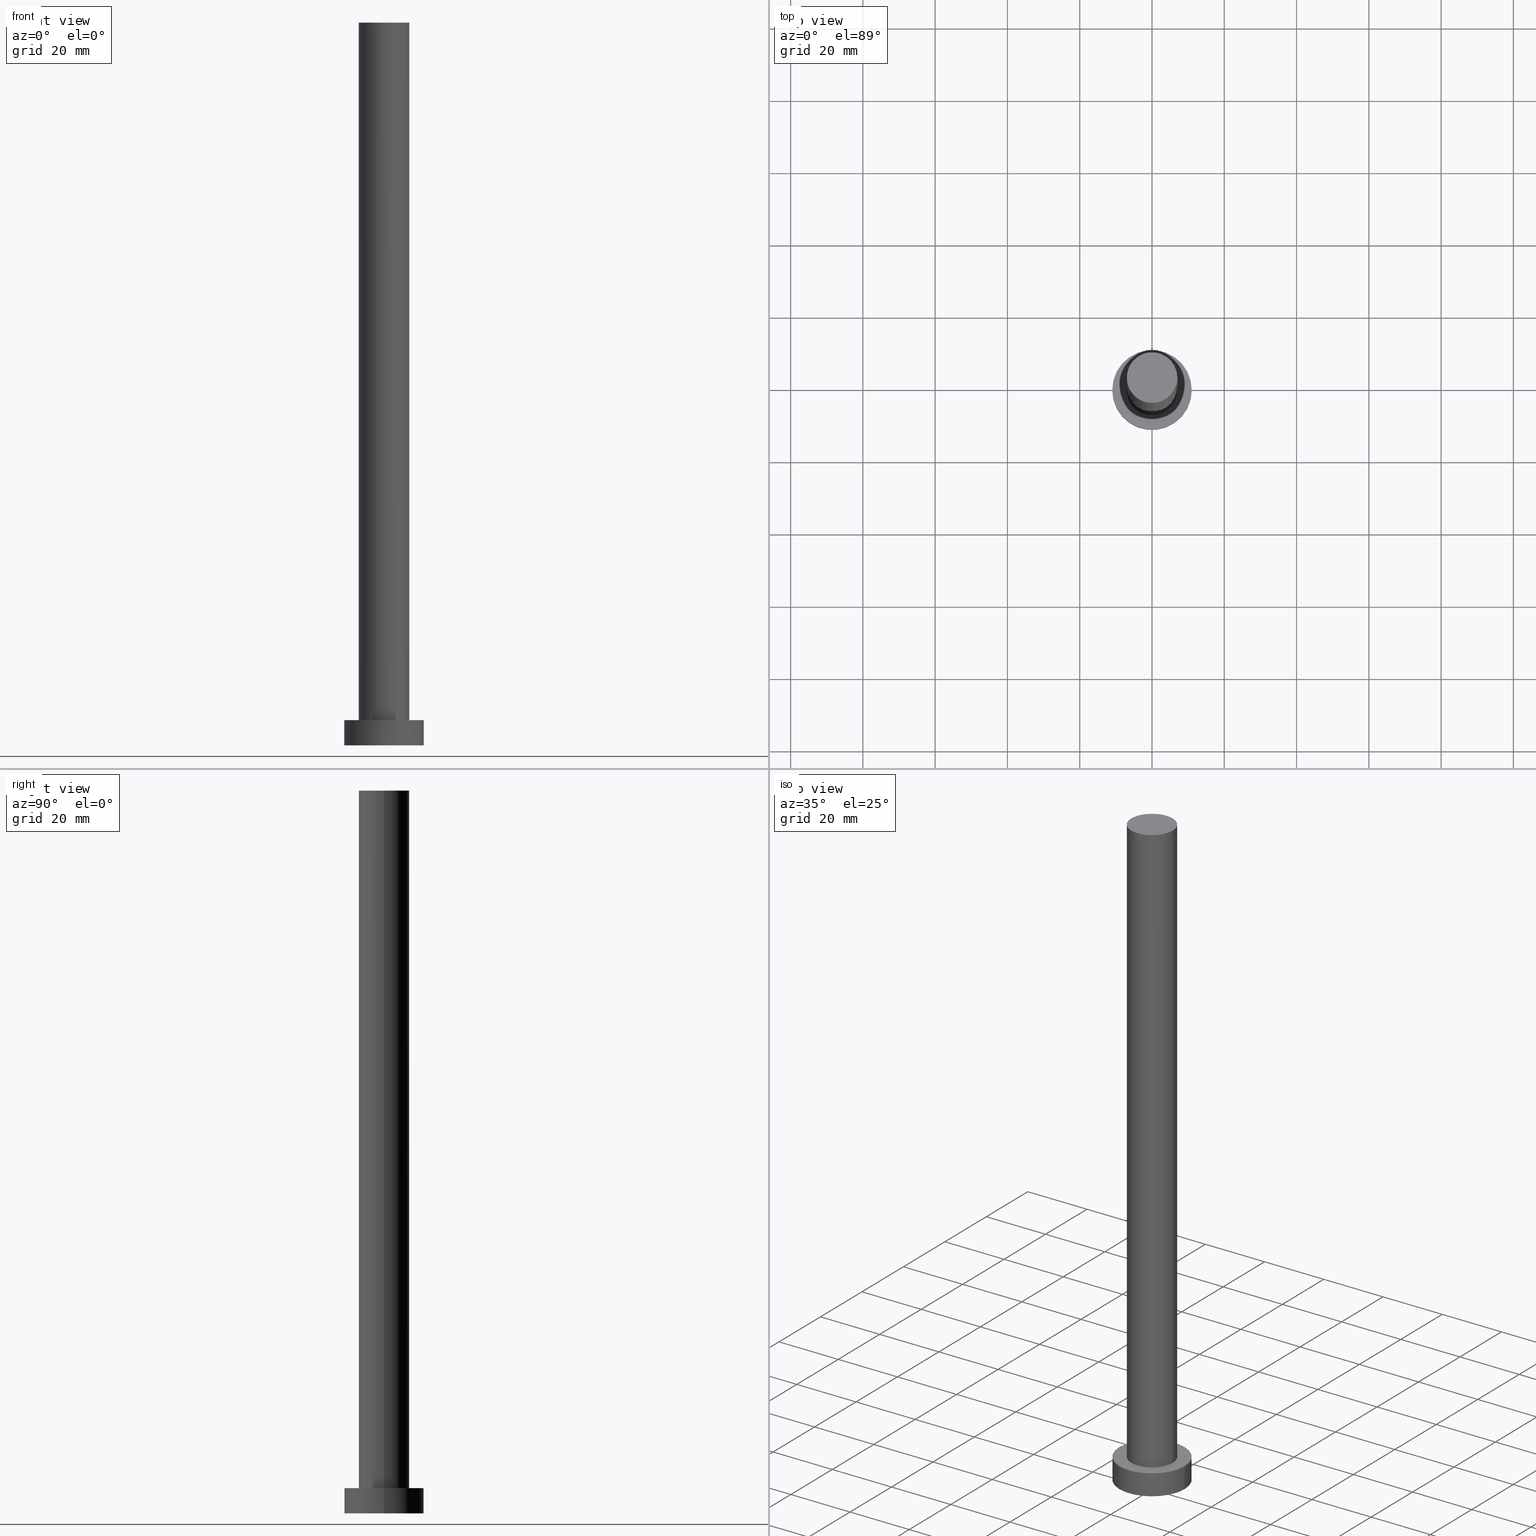
[diagram: canonical four-view strip — front | top / right | iso, engineering-drawing reading convention]
A machine part, canonical four-view strip (front | top / right | iso — engineering-drawing reading convention). The complete STEP part file that produces these views, byte-faithful:
ISO-10303-21;
HEADER;
FILE_DESCRIPTION (( 'STEP AP203' ),
    '1' );
FILE_NAME ('8347.STEP',
    '2023-02-13T09:23:05',
    ( '' ),
    ( '' ),
    'SwSTEP 2.0',
    'SolidWorks 2019',
    '' );
FILE_SCHEMA (( 'CONFIG_CONTROL_DESIGN' ));
ENDSEC;

DATA;
#1 = EDGE_CURVE ( 'NONE', #42, #231, #20, .T. ) ;
#2 = CIRCLE ( 'NONE', #103, 7.000000000000000888 ) ;
#3 = PERSON_AND_ORGANIZATION_ROLE ( 'classification_officer' ) ;
#4 = CC_DESIGN_DATE_AND_TIME_ASSIGNMENT ( #223, #40, ( #220 ) ) ;
#5 = CARTESIAN_POINT ( 'NONE',  ( 0.000000000000000000, 0.000000000000000000, 7.000000000000000000 ) ) ;
#6 = PERSON_AND_ORGANIZATION_ROLE ( 'creator' ) ;
#7 = AXIS2_PLACEMENT_3D ( 'NONE', #176, #253, #115 ) ;
#8 = EDGE_LOOP ( 'NONE', ( #33, #107 ) ) ;
#9 = AXIS2_PLACEMENT_3D ( 'NONE', #47, #184, #34 ) ;
#10 = SHAPE_DEFINITION_REPRESENTATION ( #245, #147 ) ;
#11 = CARTESIAN_POINT ( 'NONE',  ( -11.00000000000000000, 0.000000000000000000, 7.000000000000000000 ) ) ;
#12 = ORIENTED_EDGE ( 'NONE', *, *, #190, .F. ) ;
#13 = EDGE_CURVE ( 'NONE', #60, #231, #247, .T. ) ;
#14 = APPROVAL_ROLE ( '' ) ;
#15 = DIRECTION ( 'NONE',  ( 1.000000000000000000, 0.000000000000000000, -0.000000000000000000 ) ) ;
#16 = CARTESIAN_POINT ( 'NONE',  ( 11.00000000000000000, 1.347111479062088405E-15, 7.000000000000000000 ) ) ;
#17 = CLOSED_SHELL ( 'NONE', ( #122, #101, #49, #180, #92, #25, #171 ) ) ;
#18 = LINE ( 'NONE', #201, #56 ) ;
#19 = LOCAL_TIME ( 10, 23, 5.000000000000000000, #78 ) ;
#20 = LINE ( 'NONE', #21, #146 ) ;
#21 = CARTESIAN_POINT ( 'NONE',  ( -7.000000000000000888, 0.000000000000000000, 200.0000000000000000 ) ) ;
#22 = AXIS2_PLACEMENT_3D ( 'NONE', #67, #206, #166 ) ;
#23 = PRODUCT ( '8347', '8347', '', ( #87 ) ) ;
#24 = CYLINDRICAL_SURFACE ( 'NONE', #68, 7.000000000000000888 ) ;
#25 = ADVANCED_FACE ( 'NONE', ( #227 ), #203, .T. ) ;
#26 = ORIENTED_EDGE ( 'NONE', *, *, #190, .T. ) ;
#27 = AXIS2_PLACEMENT_3D ( 'NONE', #187, #135, #15 ) ;
#28 = CARTESIAN_POINT ( 'NONE',  ( -11.00000000000000000, 0.000000000000000000, 0.000000000000000000 ) ) ;
#29 = APPROVAL_PERSON_ORGANIZATION ( #35, #228, #254 ) ;
#30 = CARTESIAN_POINT ( 'NONE',  ( 0.000000000000000000, 0.000000000000000000, 200.0000000000000000 ) ) ;
#31 = APPROVAL_STATUS ( 'not_yet_approved' ) ;
#32 = ORIENTED_EDGE ( 'NONE', *, *, #13, .T. ) ;
#33 = ORIENTED_EDGE ( 'NONE', *, *, #72, .T. ) ;
#34 = DIRECTION ( 'NONE',  ( 1.000000000000000000, 0.000000000000000000, 0.000000000000000000 ) ) ;
#35 = PERSON_AND_ORGANIZATION ( #208, #205 ) ;
#36 = DIRECTION ( 'NONE',  ( 0.000000000000000000, 0.000000000000000000, 1.000000000000000000 ) ) ;
#37 = PERSON_AND_ORGANIZATION ( #208, #205 ) ;
#38 = FACE_BOUND ( 'NONE', #216, .T. ) ;
#39 = EDGE_LOOP ( 'NONE', ( #80, #252, #32, #116 ) ) ;
#40 = DATE_TIME_ROLE ( 'creation_date' ) ;
#41 = PERSON_AND_ORGANIZATION ( #208, #205 ) ;
#42 = VERTEX_POINT ( 'NONE', #44 ) ;
#43 =( NAMED_UNIT ( * ) SI_UNIT ( $, .STERADIAN. ) SOLID_ANGLE_UNIT ( ) );
#44 = CARTESIAN_POINT ( 'NONE',  ( -7.000000000000000888, 0.000000000000000000, 200.0000000000000000 ) ) ;
#45 = PERSON_AND_ORGANIZATION_ROLE ( 'design_supplier' ) ;
#46 = CC_DESIGN_PERSON_AND_ORGANIZATION_ASSIGNMENT ( #141, #222, ( #220 ) ) ;
#47 = CARTESIAN_POINT ( 'NONE',  ( 0.000000000000000000, 0.000000000000000000, 0.000000000000000000 ) ) ;
#48 = CC_DESIGN_PERSON_AND_ORGANIZATION_ASSIGNMENT ( #210, #117, ( #23 ) ) ;
#49 = ADVANCED_FACE ( 'NONE', ( #105 ), #243, .T. ) ;
#50 = DIRECTION ( 'NONE',  ( 0.000000000000000000, 0.000000000000000000, 1.000000000000000000 ) ) ;
#51 = EDGE_CURVE ( 'NONE', #133, #60, #18, .T. ) ;
#52 = AXIS2_PLACEMENT_3D ( 'NONE', #30, #36, #188 ) ;
#53 = ORIENTED_EDGE ( 'NONE', *, *, #108, .F. ) ;
#54 = APPLICATION_CONTEXT ( 'configuration controlled 3d designs of mechanical parts and assemblies' ) ;
#55 = DIRECTION ( 'NONE',  ( 1.000000000000000000, 0.000000000000000000, 0.000000000000000000 ) ) ;
#56 = VECTOR ( 'NONE', #110, 1000.000000000000000 ) ;
#57 = ORIENTED_EDGE ( 'NONE', *, *, #237, .T. ) ;
#58 = FACE_OUTER_BOUND ( 'NONE', #209, .T. ) ;
#59 = PRODUCT_RELATED_PRODUCT_CATEGORY ( 'detail', '', ( #23 ) ) ;
#60 = VERTEX_POINT ( 'NONE', #164 ) ;
#61 = CIRCLE ( 'NONE', #204, 7.000000000000000888 ) ;
#62 = ORIENTED_EDGE ( 'NONE', *, *, #51, .F. ) ;
#63 = CALENDAR_DATE ( 2023, 13, 2 ) ;
#64 = CARTESIAN_POINT ( 'NONE',  ( 0.000000000000000000, 0.000000000000000000, 7.000000000000000000 ) ) ;
#65 = AXIS2_PLACEMENT_3D ( 'NONE', #93, #137, #219 ) ;
#66 = VERTEX_POINT ( 'NONE', #16 ) ;
#67 = CARTESIAN_POINT ( 'NONE',  ( 0.000000000000000000, 0.000000000000000000, 200.0000000000000000 ) ) ;
#68 = AXIS2_PLACEMENT_3D ( 'NONE', #183, #84, #162 ) ;
#69 = SECURITY_CLASSIFICATION ( '', '', #127 ) ;
#70 = DIRECTION ( 'NONE',  ( 0.000000000000000000, 0.000000000000000000, 1.000000000000000000 ) ) ;
#71 = ORIENTED_EDGE ( 'NONE', *, *, #202, .F. ) ;
#72 = EDGE_CURVE ( 'NONE', #191, #66, #139, .T. ) ;
#73 = APPLICATION_PROTOCOL_DEFINITION ( 'international standard', 'config_control_design', 1994, #79 ) ;
#74 = DIRECTION ( 'NONE',  ( 0.000000000000000000, 0.000000000000000000, 1.000000000000000000 ) ) ;
#75 = CALENDAR_DATE ( 2023, 13, 2 ) ;
#76 = APPROVAL ( #113, 'NEUR�EN�' ) ;
#77 = CARTESIAN_POINT ( 'NONE',  ( -11.00000000000000000, 0.000000000000000000, 7.000000000000000000 ) ) ;
#78 = COORDINATED_UNIVERSAL_TIME_OFFSET ( 1, 0, .AHEAD. ) ;
#79 = APPLICATION_CONTEXT ( 'configuration controlled 3d designs of mechanical parts and assemblies' ) ;
#80 = ORIENTED_EDGE ( 'NONE', *, *, #178, .F. ) ;
#81 = DESIGN_CONTEXT ( 'detailed design', #54, 'design' ) ;
#82 = DIRECTION ( 'NONE',  ( 0.000000000000000000, 0.000000000000000000, 1.000000000000000000 ) ) ;
#83 = DATE_AND_TIME ( #199, #19 ) ;
#84 = DIRECTION ( 'NONE',  ( -0.000000000000000000, -0.000000000000000000, -1.000000000000000000 ) ) ;
#85 = CC_DESIGN_APPROVAL ( #251, ( #69 ) ) ;
#86 = ORIENTED_EDGE ( 'NONE', *, *, #202, .T. ) ;
#87 = MECHANICAL_CONTEXT ( 'NONE', #79, 'mechanical' ) ;
#88 = CYLINDRICAL_SURFACE ( 'NONE', #195, 11.00000000000000000 ) ;
#89 = DIRECTION ( 'NONE',  ( -0.000000000000000000, -0.000000000000000000, -1.000000000000000000 ) ) ;
#90 = DIRECTION ( 'NONE',  ( -0.000000000000000000, -0.000000000000000000, -1.000000000000000000 ) ) ;
#91 = DIRECTION ( 'NONE',  ( 1.000000000000000000, 0.000000000000000000, 0.000000000000000000 ) ) ;
#92 = ADVANCED_FACE ( 'NONE', ( #118 ), #131, .F. ) ;
#93 = CARTESIAN_POINT ( 'NONE',  ( 0.000000000000000000, 0.000000000000000000, 200.0000000000000000 ) ) ;
#94 = PLANE ( 'NONE',  #7 ) ;
#95 = EDGE_CURVE ( 'NONE', #42, #133, #212, .T. ) ;
#96 = EDGE_LOOP ( 'NONE', ( #62, #185, #238, #143 ) ) ;
#97 = UNCERTAINTY_MEASURE_WITH_UNIT (LENGTH_MEASURE( 1.000000000000000082E-05 ), #181, 'distance_accuracy_value', 'NONE');
#98 = CC_DESIGN_APPROVAL ( #228, ( #106 ) ) ;
#99 = CC_DESIGN_PERSON_AND_ORGANIZATION_ASSIGNMENT ( #182, #3, ( #69 ) ) ;
#100 =( NAMED_UNIT ( * ) PLANE_ANGLE_UNIT ( ) SI_UNIT ( $, .RADIAN. ) );
#101 = ADVANCED_FACE ( 'NONE', ( #249 ), #88, .T. ) ;
#102 = ORIENTED_EDGE ( 'NONE', *, *, #121, .F. ) ;
#103 = AXIS2_PLACEMENT_3D ( 'NONE', #119, #74, #91 ) ;
#104 = EDGE_LOOP ( 'NONE', ( #12, #198, #86, #129 ) ) ;
#105 = FACE_OUTER_BOUND ( 'NONE', #104, .T. ) ;
#106 = PRODUCT_DEFINITION_FORMATION_WITH_SPECIFIED_SOURCE ( 'LIBOVOLN�', '', #23, .NOT_KNOWN. ) ;
#107 = ORIENTED_EDGE ( 'NONE', *, *, #121, .T. ) ;
#108 = EDGE_CURVE ( 'NONE', #145, #241, #230, .T. ) ;
#109 = APPROVAL_DATE_TIME ( #111, #251 ) ;
#110 = DIRECTION ( 'NONE',  ( -0.000000000000000000, -0.000000000000000000, -1.000000000000000000 ) ) ;
#111 = DATE_AND_TIME ( #140, #242 ) ;
#112 = CIRCLE ( 'NONE', #163, 11.00000000000000000 ) ;
#113 = APPROVAL_STATUS ( 'not_yet_approved' ) ;
#114 = DIRECTION ( 'NONE',  ( 1.000000000000000000, 0.000000000000000000, 0.000000000000000000 ) ) ;
#115 = DIRECTION ( 'NONE',  ( 1.000000000000000000, 0.000000000000000000, -0.000000000000000000 ) ) ;
#116 = ORIENTED_EDGE ( 'NONE', *, *, #1, .F. ) ;
#117 = PERSON_AND_ORGANIZATION_ROLE ( 'design_owner' ) ;
#118 = FACE_OUTER_BOUND ( 'NONE', #215, .T. ) ;
#119 = CARTESIAN_POINT ( 'NONE',  ( 0.000000000000000000, 0.000000000000000000, 200.0000000000000000 ) ) ;
#120 = AXIS2_PLACEMENT_3D ( 'NONE', #248, #70, #207 ) ;
#121 = EDGE_CURVE ( 'NONE', #66, #191, #255, .T. ) ;
#122 = ADVANCED_FACE ( 'NONE', ( #233 ), #24, .T. ) ;
#123 = MANIFOLD_SOLID_BREP ( 'P�idat vysunut�m3', #17 ) ;
#124 = ORIENTED_EDGE ( 'NONE', *, *, #95, .T. ) ;
#125 = COORDINATED_UNIVERSAL_TIME_OFFSET ( 1, 0, .AHEAD. ) ;
#126 = DIRECTION ( 'NONE',  ( -1.000000000000000000, 0.000000000000000000, 0.000000000000000000 ) ) ;
#127 = SECURITY_CLASSIFICATION_LEVEL ( 'unclassified' ) ;
#128 = DIRECTION ( 'NONE',  ( 1.000000000000000000, 0.000000000000000000, 0.000000000000000000 ) ) ;
#129 = ORIENTED_EDGE ( 'NONE', *, *, #108, .T. ) ;
#130 = DATE_AND_TIME ( #151, #194 ) ;
#131 = PLANE ( 'NONE',  #27 ) ;
#132 = APPROVAL_DATE_TIME ( #130, #76 ) ;
#133 = VERTEX_POINT ( 'NONE', #148 ) ;
#134 = CARTESIAN_POINT ( 'NONE',  ( 0.000000000000000000, 0.000000000000000000, 7.000000000000000000 ) ) ;
#135 = DIRECTION ( 'NONE',  ( 0.000000000000000000, 0.000000000000000000, 1.000000000000000000 ) ) ;
#136 = DATE_AND_TIME ( #75, #144 ) ;
#137 = DIRECTION ( 'NONE',  ( 0.000000000000000000, 0.000000000000000000, 1.000000000000000000 ) ) ;
#138 = CC_DESIGN_APPROVAL ( #76, ( #220 ) ) ;
#139 = CIRCLE ( 'NONE', #200, 11.00000000000000000 ) ;
#140 = CALENDAR_DATE ( 2023, 13, 2 ) ;
#141 = PERSON_AND_ORGANIZATION ( #208, #205 ) ;
#142 = APPROVAL_DATE_TIME ( #83, #228 ) ;
#143 = ORIENTED_EDGE ( 'NONE', *, *, #240, .T. ) ;
#144 = LOCAL_TIME ( 10, 23, 5.000000000000000000, #244 ) ;
#145 = VERTEX_POINT ( 'NONE', #28 ) ;
#146 = VECTOR ( 'NONE', #161, 1000.000000000000000 ) ;
#147 = ADVANCED_BREP_SHAPE_REPRESENTATION ( '8347', ( #123, #9 ), #229 ) ;
#148 = CARTESIAN_POINT ( 'NONE',  ( 7.000000000000000888, 8.572527594031474176E-16, 200.0000000000000000 ) ) ;
#149 = AXIS2_PLACEMENT_3D ( 'NONE', #186, #50, #128 ) ;
#150 = ORIENTED_EDGE ( 'NONE', *, *, #13, .F. ) ;
#151 = CALENDAR_DATE ( 2023, 13, 2 ) ;
#152 = DIRECTION ( 'NONE',  ( -1.000000000000000000, 0.000000000000000000, 0.000000000000000000 ) ) ;
#153 = VECTOR ( 'NONE', #90, 1000.000000000000000 ) ;
#154 = CC_DESIGN_SECURITY_CLASSIFICATION ( #69, ( #106 ) ) ;
#155 = ORIENTED_EDGE ( 'NONE', *, *, #240, .F. ) ;
#156 = COORDINATED_UNIVERSAL_TIME_OFFSET ( 1, 0, .AHEAD. ) ;
#157 = LINE ( 'NONE', #11, #246 ) ;
#158 = COORDINATED_UNIVERSAL_TIME_OFFSET ( 1, 0, .AHEAD. ) ;
#159 = DIRECTION ( 'NONE',  ( 1.000000000000000000, 0.000000000000000000, 0.000000000000000000 ) ) ;
#160 = DIRECTION ( 'NONE',  ( -0.000000000000000000, -0.000000000000000000, -1.000000000000000000 ) ) ;
#161 = DIRECTION ( 'NONE',  ( -0.000000000000000000, -0.000000000000000000, -1.000000000000000000 ) ) ;
#162 = DIRECTION ( 'NONE',  ( -1.000000000000000000, 0.000000000000000000, 0.000000000000000000 ) ) ;
#163 = AXIS2_PLACEMENT_3D ( 'NONE', #250, #234, #55 ) ;
#164 = CARTESIAN_POINT ( 'NONE',  ( 7.000000000000000888, 8.572527594031474176E-16, 7.000000000000000000 ) ) ;
#165 = CC_DESIGN_PERSON_AND_ORGANIZATION_ASSIGNMENT ( #41, #6, ( #106 ) ) ;
#166 = DIRECTION ( 'NONE',  ( -1.000000000000000000, 0.000000000000000000, 0.000000000000000000 ) ) ;
#167 = DIRECTION ( 'NONE',  ( -0.000000000000000000, -0.000000000000000000, -1.000000000000000000 ) ) ;
#168 = PERSON_AND_ORGANIZATION ( #208, #205 ) ;
#169 = APPLICATION_PROTOCOL_DEFINITION ( 'international standard', 'config_control_design', 1994, #54 ) ;
#170 = CARTESIAN_POINT ( 'NONE',  ( -7.000000000000000888, 0.000000000000000000, 7.000000000000000000 ) ) ;
#171 = ADVANCED_FACE ( 'NONE', ( #58 ), #217, .T. ) ;
#172 = CARTESIAN_POINT ( 'NONE',  ( 11.00000000000000000, 1.347111479062088405E-15, 0.000000000000000000 ) ) ;
#173 = APPROVAL_STATUS ( 'not_yet_approved' ) ;
#174 = DIRECTION ( 'NONE',  ( 0.000000000000000000, 0.000000000000000000, 1.000000000000000000 ) ) ;
#175 = LINE ( 'NONE', #193, #153 ) ;
#176 = CARTESIAN_POINT ( 'NONE',  ( 0.000000000000000000, 0.000000000000000000, 7.000000000000000000 ) ) ;
#177 = AXIS2_PLACEMENT_3D ( 'NONE', #64, #160, #126 ) ;
#178 = EDGE_CURVE ( 'NONE', #133, #42, #2, .T. ) ;
#179 = CARTESIAN_POINT ( 'NONE',  ( 0.000000000000000000, 0.000000000000000000, 7.000000000000000000 ) ) ;
#180 = ADVANCED_FACE ( 'NONE', ( #38, #197 ), #94, .T. ) ;
#181 =( LENGTH_UNIT ( ) NAMED_UNIT ( * ) SI_UNIT ( .MILLI., .METRE. ) );
#182 = PERSON_AND_ORGANIZATION ( #208, #205 ) ;
#183 = CARTESIAN_POINT ( 'NONE',  ( 0.000000000000000000, 0.000000000000000000, 200.0000000000000000 ) ) ;
#184 = DIRECTION ( 'NONE',  ( 0.000000000000000000, 0.000000000000000000, 1.000000000000000000 ) ) ;
#185 = ORIENTED_EDGE ( 'NONE', *, *, #95, .F. ) ;
#186 = CARTESIAN_POINT ( 'NONE',  ( 0.000000000000000000, 0.000000000000000000, 7.000000000000000000 ) ) ;
#187 = CARTESIAN_POINT ( 'NONE',  ( 0.000000000000000000, 0.000000000000000000, 0.000000000000000000 ) ) ;
#188 = DIRECTION ( 'NONE',  ( 1.000000000000000000, 0.000000000000000000, -0.000000000000000000 ) ) ;
#189 = DIRECTION ( 'NONE',  ( 1.000000000000000000, 0.000000000000000000, 0.000000000000000000 ) ) ;
#190 = EDGE_CURVE ( 'NONE', #66, #241, #175, .T. ) ;
#191 = VERTEX_POINT ( 'NONE', #77 ) ;
#192 = CARTESIAN_POINT ( 'NONE',  ( 0.000000000000000000, 0.000000000000000000, 7.000000000000000000 ) ) ;
#193 = CARTESIAN_POINT ( 'NONE',  ( 11.00000000000000000, 1.347111479062088405E-15, 7.000000000000000000 ) ) ;
#194 = LOCAL_TIME ( 10, 23, 5.000000000000000000, #125 ) ;
#195 = AXIS2_PLACEMENT_3D ( 'NONE', #5, #167, #152 ) ;
#196 = APPROVAL_ROLE ( '' ) ;
#197 = FACE_OUTER_BOUND ( 'NONE', #8, .T. ) ;
#198 = ORIENTED_EDGE ( 'NONE', *, *, #72, .F. ) ;
#199 = CALENDAR_DATE ( 2023, 13, 2 ) ;
#200 = AXIS2_PLACEMENT_3D ( 'NONE', #192, #174, #114 ) ;
#201 = CARTESIAN_POINT ( 'NONE',  ( 7.000000000000000888, 8.572527594031474176E-16, 200.0000000000000000 ) ) ;
#202 = EDGE_CURVE ( 'NONE', #191, #145, #157, .T. ) ;
#203 = CYLINDRICAL_SURFACE ( 'NONE', #22, 7.000000000000000888 ) ;
#204 = AXIS2_PLACEMENT_3D ( 'NONE', #134, #214, #189 ) ;
#205 = ORGANIZATION ( 'NEUR�EN�', 'NEUR�EN�', '' ) ;
#206 = DIRECTION ( 'NONE',  ( -0.000000000000000000, -0.000000000000000000, -1.000000000000000000 ) ) ;
#207 = DIRECTION ( 'NONE',  ( 1.000000000000000000, 0.000000000000000000, 0.000000000000000000 ) ) ;
#208 = PERSON ( 'NEUR�EN�', 'NEUR�EN�', 'NEUR�EN�', ('NEUR�EN�'), ('NEUR�EN�'), ('NEUR�EN�') ) ;
#209 = EDGE_LOOP ( 'NONE', ( #124, #232 ) ) ;
#210 = PERSON_AND_ORGANIZATION ( #208, #205 ) ;
#211 = APPROVAL_PERSON_ORGANIZATION ( #37, #251, #196 ) ;
#212 = CIRCLE ( 'NONE', #65, 7.000000000000000888 ) ;
#213 = PERSON_AND_ORGANIZATION ( #208, #205 ) ;
#214 = DIRECTION ( 'NONE',  ( 0.000000000000000000, 0.000000000000000000, 1.000000000000000000 ) ) ;
#215 = EDGE_LOOP ( 'NONE', ( #53, #221 ) ) ;
#216 = EDGE_LOOP ( 'NONE', ( #155, #150 ) ) ;
#217 = PLANE ( 'NONE',  #52 ) ;
#218 = DATE_TIME_ROLE ( 'classification_date' ) ;
#219 = DIRECTION ( 'NONE',  ( 1.000000000000000000, 0.000000000000000000, 0.000000000000000000 ) ) ;
#220 = PRODUCT_DEFINITION ( 'NEZN�M�', '', #106, #81 ) ;
#221 = ORIENTED_EDGE ( 'NONE', *, *, #237, .F. ) ;
#222 = PERSON_AND_ORGANIZATION_ROLE ( 'creator' ) ;
#223 = DATE_AND_TIME ( #63, #224 ) ;
#224 = LOCAL_TIME ( 10, 23, 5.000000000000000000, #158 ) ;
#225 = AXIS2_PLACEMENT_3D ( 'NONE', #179, #82, #159 ) ;
#226 = CC_DESIGN_PERSON_AND_ORGANIZATION_ASSIGNMENT ( #168, #45, ( #106 ) ) ;
#227 = FACE_OUTER_BOUND ( 'NONE', #96, .T. ) ;
#228 = APPROVAL ( #173, 'NEUR�EN�' ) ;
#229 =( GEOMETRIC_REPRESENTATION_CONTEXT ( 3 ) GLOBAL_UNCERTAINTY_ASSIGNED_CONTEXT ( ( #97 ) ) GLOBAL_UNIT_ASSIGNED_CONTEXT ( ( #181, #100, #43 ) ) REPRESENTATION_CONTEXT ( 'NONE', 'WORKASPACE' ) );
#230 = CIRCLE ( 'NONE', #120, 11.00000000000000000 ) ;
#231 = VERTEX_POINT ( 'NONE', #170 ) ;
#232 = ORIENTED_EDGE ( 'NONE', *, *, #178, .T. ) ;
#233 = FACE_OUTER_BOUND ( 'NONE', #39, .T. ) ;
#234 = DIRECTION ( 'NONE',  ( 0.000000000000000000, 0.000000000000000000, 1.000000000000000000 ) ) ;
#235 = CC_DESIGN_DATE_AND_TIME_ASSIGNMENT ( #136, #218, ( #69 ) ) ;
#236 = EDGE_LOOP ( 'NONE', ( #102, #26, #57, #71 ) ) ;
#237 = EDGE_CURVE ( 'NONE', #241, #145, #112, .T. ) ;
#238 = ORIENTED_EDGE ( 'NONE', *, *, #1, .T. ) ;
#239 = APPROVAL_PERSON_ORGANIZATION ( #213, #76, #14 ) ;
#240 = EDGE_CURVE ( 'NONE', #231, #60, #61, .T. ) ;
#241 = VERTEX_POINT ( 'NONE', #172 ) ;
#242 = LOCAL_TIME ( 10, 23, 5.000000000000000000, #156 ) ;
#243 = CYLINDRICAL_SURFACE ( 'NONE', #177, 11.00000000000000000 ) ;
#244 = COORDINATED_UNIVERSAL_TIME_OFFSET ( 1, 0, .AHEAD. ) ;
#245 = PRODUCT_DEFINITION_SHAPE ( 'NONE', 'NONE',  #220 ) ;
#246 = VECTOR ( 'NONE', #89, 1000.000000000000000 ) ;
#247 = CIRCLE ( 'NONE', #225, 7.000000000000000888 ) ;
#248 = CARTESIAN_POINT ( 'NONE',  ( 0.000000000000000000, 0.000000000000000000, 0.000000000000000000 ) ) ;
#249 = FACE_OUTER_BOUND ( 'NONE', #236, .T. ) ;
#250 = CARTESIAN_POINT ( 'NONE',  ( 0.000000000000000000, 0.000000000000000000, 0.000000000000000000 ) ) ;
#251 = APPROVAL ( #31, 'NEUR�EN�' ) ;
#252 = ORIENTED_EDGE ( 'NONE', *, *, #51, .T. ) ;
#253 = DIRECTION ( 'NONE',  ( 0.000000000000000000, 0.000000000000000000, 1.000000000000000000 ) ) ;
#254 = APPROVAL_ROLE ( '' ) ;
#255 = CIRCLE ( 'NONE', #149, 11.00000000000000000 ) ;
ENDSEC;
END-ISO-10303-21;
